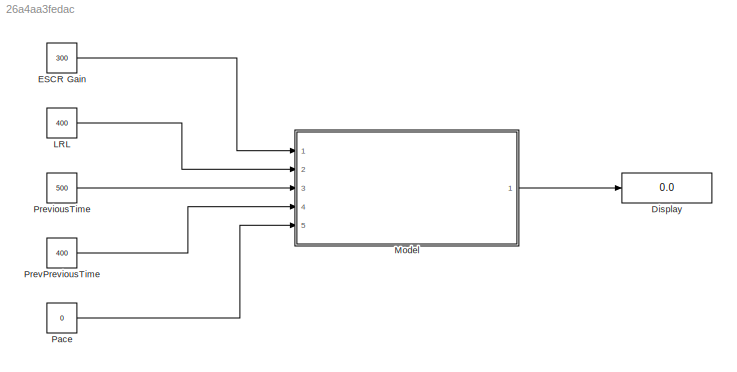
MODEL slx_26a4aa3fedac
KIND model
CONFIG AbsTol = auto
CONFIG EnableMultiTasking = on
CONFIG FixedStep = 1e-3
CONFIG MaxStep = auto
CONFIG MinStep = auto
CONFIG RelTol = 1e-3
CONFIG SampleTimeConstraint = Unconstrained
CONFIG Solver = FixedStepAuto
CONFIG SolverName = FixedStepAuto
CONFIG StartTime = 0.0
CONFIG StopTime = 10.0
BLOCK [Display] Display
  Decimation = 1
  Ports = [1]
BLOCK [Constant] ESCR Gain
  Value = 300
BLOCK [Constant] LRL
  Value = 400
BLOCK [ModelReference] Model
  ModelNameDialog = Hysteresis.slx
  ModelReferenceVersion = 1.18
  Ports = [5, 1]
BLOCK [Constant] Pace
  OutDataTypeStr = boolean
  Value = 0
BLOCK [Constant] PrevPreviousTime
  Value = 400
BLOCK [Constant] PreviousTime
  Value = 500
LINE ESCR Gain:1 -> Model:1
LINE LRL:1 -> Model:2
LINE Model:1 -> Display:1
LINE Pace:1 -> Model:5
LINE PrevPreviousTime:1 -> Model:4
LINE PreviousTime:1 -> Model:3
